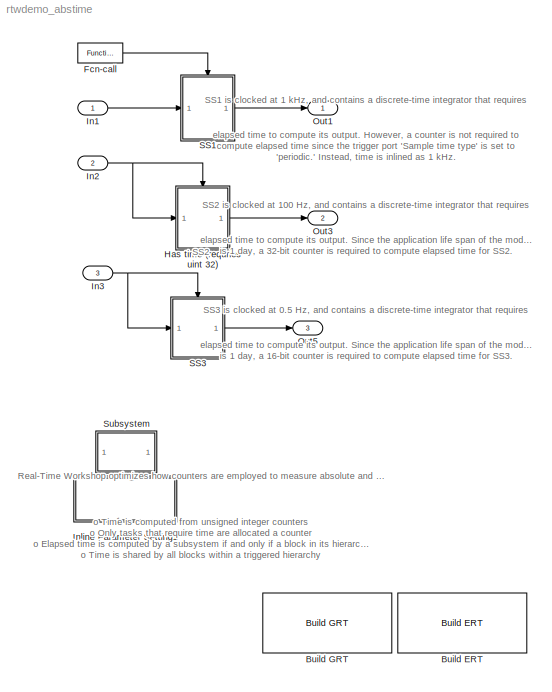
MODEL rtwdemo_abstime
KIND model
BLOCK [Reference] Build ERT  REF=rtwdemowidgets/Build ERT
  Ports = []
  ShowPortLabels = on
  SourceBlock = rtwdemowidgets/Build ERT
  attrib_overrides = {}
BLOCK [Reference] Build GRT  REF=rtwdemowidgets/Build GRT
  Ports = []
  ShowPortLabels = on
  SourceBlock = rtwdemowidgets/Build GRT
  attrib_overrides = {}
BLOCK [Reference] Fcn-call  REF=simulink/Ports &\nSubsystems/Function-Call\nGenerator
  Ports = [0, 1]
  SourceBlock = simulink/Ports &\nSubsystems/Function-Call\nGenerator
  SourceType = Function-Call Generator
  numberOfIterations = 1
  sample_time = 0.001
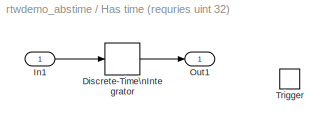
BLOCK [SubSystem] Has time (requries uint 32)
  MinAlgLoopOccurrences = off
  Ports = [1, 1, 0, 1]
  PropExecContextAcrossSSBoundary = on
  RTWSystemCode = Auto
  TreatAsAtomicUnit = off
BLOCK [DiscreteIntegrator] Has time (requries uint 32)/Discrete-Time\nIntegrator
  ExternalReset = none
  ICPrevOutput = DiscIntNeverNeededParam
  ICPrevScaledInput = DiscIntNeverNeededParam
  InitialConditionSource = internal
  IntegratorMethod = Integration: Forward Euler
  Ports = [1, 1]
  SampleTime = -1
BLOCK [Inport] Has time (requries uint 32)/In1
  IconDisplay = Port number
  LatchInput = off
  Port = 1
BLOCK [Outport] Has time (requries uint 32)/Out1
  BusOutputAsStruct = off
  IconDisplay = Port number
  InitialOutput = 0
BLOCK [TriggerPort] Has time (requries uint 32)/Trigger
  Ports = []
  SampleTime = -1
  StatesWhenEnabling = held
  TriggerType = either
BLOCK [Inport] In1
  IconDisplay = Port number
  LatchInput = off
  Port = 1
BLOCK [Inport] In2
  IconDisplay = Port number
  LatchInput = off
  Port = 2
  SampleTime = .01
BLOCK [Inport] In3
  IconDisplay = Port number
  LatchInput = off
  Port = 3
  SampleTime = 2
BLOCK [SubSystem] Inline Parameter Setting1
  MaskDisplay = disp(sprintf('Display Sample\\nTime Colors\\n(double-click)'))
  MaskIconFrame = on
  MaskIconOpaque = on
  MaskIconRotate = none
  MaskIconUnits = autoscale
  MinAlgLoopOccurrences = off
  OpenFcn = m=get_param(bdroot,'name'); eval([m,'([],[],[],''compile'');']); eval([m,'([],[],[],''term'');']);
  Ports = []
  PropExecContextAcrossSSBoundary = on
  RTWSystemCode = Auto
  TreatAsAtomicUnit = off
BLOCK [Outport] Out1
  BusOutputAsStruct = off
  IconDisplay = Port number
BLOCK [Outport] Out3
  BusOutputAsStruct = off
  IconDisplay = Port number
  Port = 2
BLOCK [Outport] Out5
  BusOutputAsStruct = off
  IconDisplay = Port number
  Port = 3
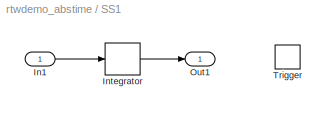
BLOCK [SubSystem] SS1
  MinAlgLoopOccurrences = off
  Ports = [1, 1, 0, 1]
  PropExecContextAcrossSSBoundary = on
  RTWSystemCode = Auto
  TreatAsAtomicUnit = off
BLOCK [Inport] SS1/In1
  IconDisplay = Port number
  LatchInput = off
  Port = 1
BLOCK [DiscreteIntegrator] SS1/Integrator
  ExternalReset = none
  ICPrevOutput = DiscIntNeverNeededParam
  ICPrevScaledInput = DiscIntNeverNeededParam
  InitialConditionSource = internal
  IntegratorMethod = Integration: Forward Euler
  Ports = [1, 1]
  SampleTime = -1
BLOCK [Outport] SS1/Out1
  BusOutputAsStruct = off
  IconDisplay = Port number
  InitialOutput = 0
BLOCK [TriggerPort] SS1/Trigger
  Ports = []
  SampleTime = 0.001
  SampleTimeType = periodic
  StatesWhenEnabling = held
  TriggerType = function-call
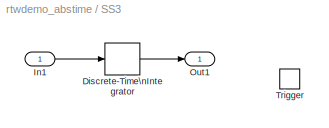
BLOCK [SubSystem] SS3
  MinAlgLoopOccurrences = off
  Ports = [1, 1, 0, 1]
  PropExecContextAcrossSSBoundary = on
  RTWSystemCode = Auto
  TreatAsAtomicUnit = off
BLOCK [DiscreteIntegrator] SS3/Discrete-Time\nIntegrator
  ExternalReset = none
  ICPrevOutput = DiscIntNeverNeededParam
  ICPrevScaledInput = DiscIntNeverNeededParam
  InitialConditionSource = internal
  IntegratorMethod = Integration: Forward Euler
  Ports = [1, 1]
  SampleTime = -1
BLOCK [Inport] SS3/In1
  IconDisplay = Port number
  LatchInput = off
  Port = 1
BLOCK [Outport] SS3/Out1
  BusOutputAsStruct = off
  IconDisplay = Port number
  InitialOutput = 0
BLOCK [TriggerPort] SS3/Trigger
  Ports = []
  StatesWhenEnabling = held
  TriggerType = either
BLOCK [SubSystem] Subsystem
  MaskDisplay = disp(['Did you\\nknow ..','.'])
  MaskIconFrame = on
  MaskIconOpaque = on
  MaskIconRotate = none
  MaskIconUnits = autoscale
  MinAlgLoopOccurrences = off
  Ports = []
  PropExecContextAcrossSSBoundary = on
  RTWSystemCode = Auto
  TreatAsAtomicUnit = off
ANNOTATION (root): Real-Time Workshop optimizes how counters are employed to measure absolute and elapsed time:\n\no Time is computed from unsigned integer counters\no Only tasks that require time are allocated a counter\no Elapsed time is computed by a subsystem if and only if a block in its hierarchy requires elapsed time\no Time is shared by all blocks within a triggered hierarchy\n\nReal-Time Workshop further op...<+177ch>
ANNOTATION (root): SS1 is clocked at 1 kHz, and contains a discrete-time integrator that requires\nelapsed time to compute its output. However, a counter is not required to\ncompute elapsed time since the trigger port 'Sample time type' is set to \n'periodic.' Instead, time is inlined as 1 kHz.
ANNOTATION (root): SS2
ANNOTATION (root): SS2 is clocked at 100 Hz, and contains a discrete-time integrator that requires\nelapsed time to compute its output. Since the application life span of the model\nis 1 day, a 32-bit counter is required to compute elapsed time for SS2.
ANNOTATION (root): SS3 is clocked at 0.5 Hz, and contains a discrete-time integrator that requires\nelapsed time to compute its output. Since the application life span of the model\nis 1 day, a 16-bit counter is required to compute elapsed time for SS3.
ANNOTATION Subsystem: Assume an unsigned integer counter is incrementing at 1 kHz. The number\nof bits required to avoid an integer overflow is as follows:\n\nTime span 50 days: 64-bits\n\nAnd, the 64-bit timer will not overflow for 590 million years!\n\nLeveraging the 'Application life span' option provided by Simulink allows you to\navoid timer overflows efficiently without wasting memory.
LINE Fcn-call:1 -> SS1:trigger
LINE Has time (requries uint 32)/Discrete-Time\nIntegrator:1 -> Has time (requries uint 32)/Out1:1
LINE Has time (requries uint 32)/In1:1 -> Has time (requries uint 32)/Discrete-Time\nIntegrator:1
LINE Has time (requries uint 32):1 -> Out3:1
LINE In1:1 -> SS1:1
NET In2:1 -> Has time (requries uint 32):1, Has time (requries uint 32):trigger
NET In3:1 -> SS3:1, SS3:trigger
LINE SS1/In1:1 -> SS1/Integrator:1
LINE SS1/Integrator:1 -> SS1/Out1:1
LINE SS1:1 -> Out1:1
LINE SS3/Discrete-Time\nIntegrator:1 -> SS3/Out1:1
LINE SS3/In1:1 -> SS3/Discrete-Time\nIntegrator:1
LINE SS3:1 -> Out5:1
note: NET lines group one-source signal fan-out (src -> all destinations, sorted); 1:1 wires keep LINE
